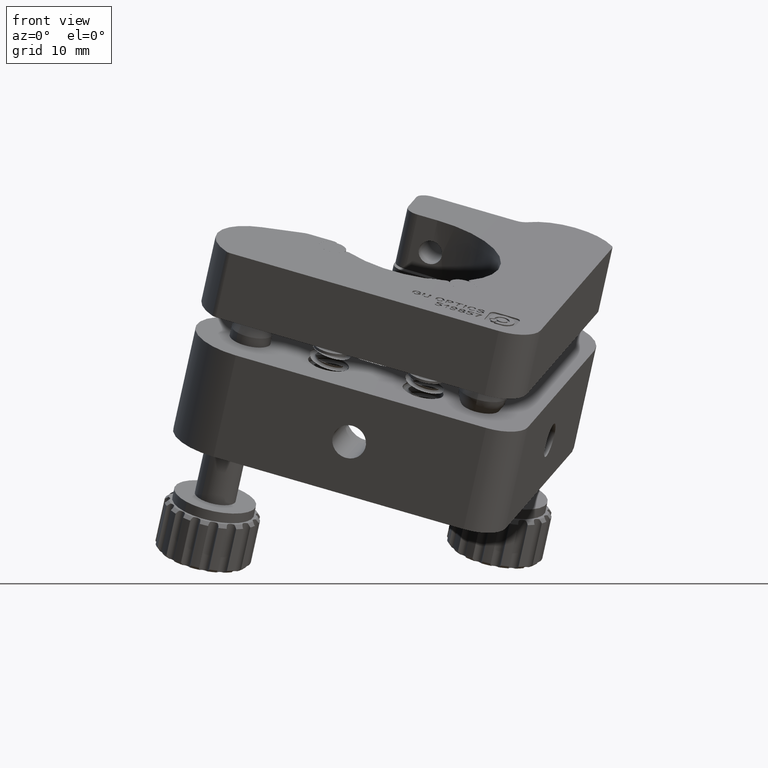
[diagram: clean part render]
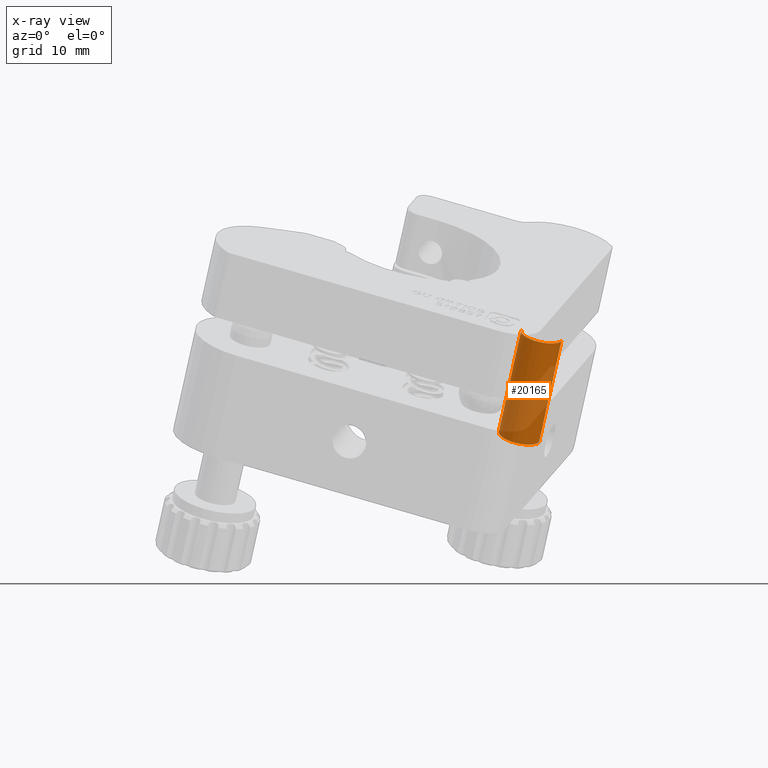
[diagram: x-ray — body ghosted, one internal face saturated and labeled with its STEP entity id]
A machine part, front view, then the same camera in x-ray: the body is ghosted and one INTERNAL B-rep face — a face not visible from any outside direction — is saturated and labeled: STEP entity #20165.
In plain terms, the highlighted cylindrical surface (edge-blend (fillet) strip) has radius 3 mm, axis along (-0.2028, 0.3443, -0.9167).
Its self-contained STEP definition (entity closure, byte-faithful):
#632 = LINE ( 'NONE', #16826, #34459 ) ;
#1359 = CARTESIAN_POINT ( 'NONE',  ( -567.3820284478026700, -1699.215046864208500, -512.7801679492441700 ) ) ;
#2358 = DIRECTION ( 'NONE',  ( -0.2027682202555435600, 0.3442554385256141900, -0.9167187365271513000 ) ) ;
#3697 = CIRCLE ( 'NONE', #33667, 3.000000000000052000 ) ;
#5763 = CIRCLE ( 'NONE', #29496, 3.000000000000052000 ) ;
#5913 = VERTEX_POINT ( 'NONE', #20585 ) ;
#7123 = CARTESIAN_POINT ( 'NONE',  ( -570.2204163651023200, -1698.697664843000000, -511.9580548943314400 ) ) ;
#10376 = DIRECTION ( 'NONE',  ( -0.9461293057665245400, 0.1724606737361788800, 0.2740376849709133500 ) ) ;
#10602 = AXIS2_PLACEMENT_3D ( 'NONE', #12334, #38375, #35242 ) ;
#10971 = DIRECTION ( 'NONE',  ( -0.2027682202555435900, 0.3442554385256142400, -0.9167187365271513000 ) ) ;
#12245 = CARTESIAN_POINT ( 'NONE',  ( -567.3820284478026700, -1699.215046864208500, -512.7801679492441700 ) ) ;
#12334 = CARTESIAN_POINT ( 'NONE',  ( -570.2204163651023200, -1698.697664843000000, -511.9580548943314400 ) ) ;
#13227 = ORIENTED_EDGE ( 'NONE', *, *, #19258, .T. ) ;
#13397 = LINE ( 'NONE', #12245, #37438 ) ;
#14311 = ORIENTED_EDGE ( 'NONE', *, *, #23707, .F. ) ;
#14963 = CARTESIAN_POINT ( 'NONE',  ( -573.0588042824019800, -1698.180282821791300, -511.1359418394187100 ) ) ;
#16226 = ORIENTED_EDGE ( 'NONE', *, *, #19014, .T. ) ;
#16826 = CARTESIAN_POINT ( 'NONE',  ( -573.0588042824019800, -1698.180282821791300, -511.1359418394187100 ) ) ;
#17705 = EDGE_CURVE ( 'NONE', #21695, #31693, #632, .T. ) ;
#18515 = VERTEX_POINT ( 'NONE', #1359 ) ;
#19014 = EDGE_CURVE ( 'NONE', #5913, #31693, #5763, .T. ) ;
#19258 = EDGE_CURVE ( 'NONE', #18515, #5913, #13397, .T. ) ;
#20165 = ADVANCED_FACE ( 'NONE', ( #41954 ), #30168, .F. ) ;
#20381 = CARTESIAN_POINT ( 'NONE',  ( -576.2625421624395600, -1692.741046893086600, -525.6200978765476700 ) ) ;
#20585 = CARTESIAN_POINT ( 'NONE',  ( -570.5857663278403600, -1693.775810935503600, -527.2643239863731400 ) ) ;
#21695 = VERTEX_POINT ( 'NONE', #14963 ) ;
#23707 = EDGE_CURVE ( 'NONE', #18515, #21695, #3697, .T. ) ;
#29496 = AXIS2_PLACEMENT_3D ( 'NONE', #30624, #10971, #33920 ) ;
#30010 = DIRECTION ( 'NONE',  ( -0.2027682202555435900, 0.3442554385256142400, -0.9167187365271513000 ) ) ;
#30168 = CYLINDRICAL_SURFACE ( 'NONE', #10602, 3.000000000000052000 ) ;
#30624 = CARTESIAN_POINT ( 'NONE',  ( -573.4241542451399000, -1693.258428914295100, -526.4422109314604100 ) ) ;
#31693 = VERTEX_POINT ( 'NONE', #20381 ) ;
#32918 = ORIENTED_EDGE ( 'NONE', *, *, #17705, .F. ) ;
#33293 = DIRECTION ( 'NONE',  ( -0.2027682202555435600, 0.3442554385256141900, -0.9167187365271513000 ) ) ;
#33667 = AXIS2_PLACEMENT_3D ( 'NONE', #7123, #30010, #10376 ) ;
#33920 = DIRECTION ( 'NONE',  ( -0.9461293057665245400, 0.1724606737361788800, 0.2740376849709133500 ) ) ;
#34459 = VECTOR ( 'NONE', #33293, 1000.000000000000100 ) ;
#35242 = DIRECTION ( 'NONE',  ( -0.9461293057665245400, 0.1724606737361788800, 0.2740376849709133500 ) ) ;
#37438 = VECTOR ( 'NONE', #2358, 1000.000000000000100 ) ;
#38375 = DIRECTION ( 'NONE',  ( -0.2027682202555435900, 0.3442554385256142400, -0.9167187365271513000 ) ) ;
#41410 = EDGE_LOOP ( 'NONE', ( #14311, #13227, #16226, #32918 ) ) ;
#41954 = FACE_OUTER_BOUND ( 'NONE', #41410, .T. ) ;